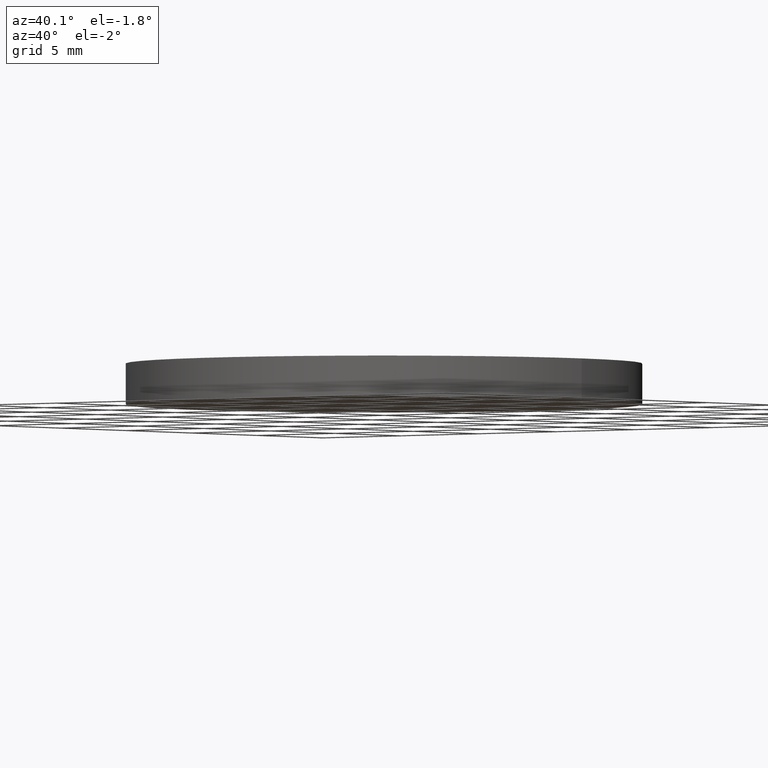
[diagram: clean part render]
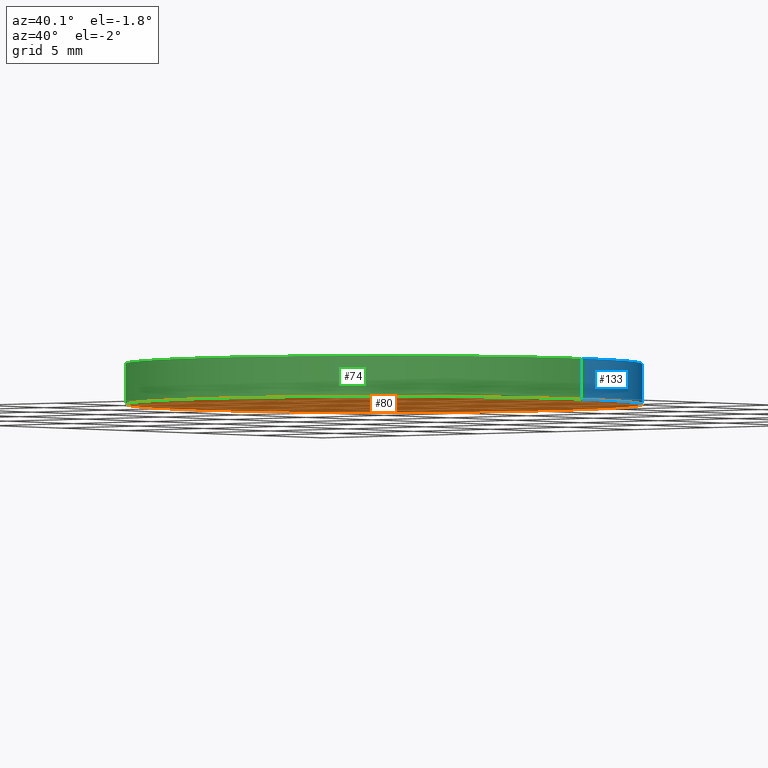
[diagram: same view with three faces highlighted in distinct colors, each labeled with its STEP entity id]
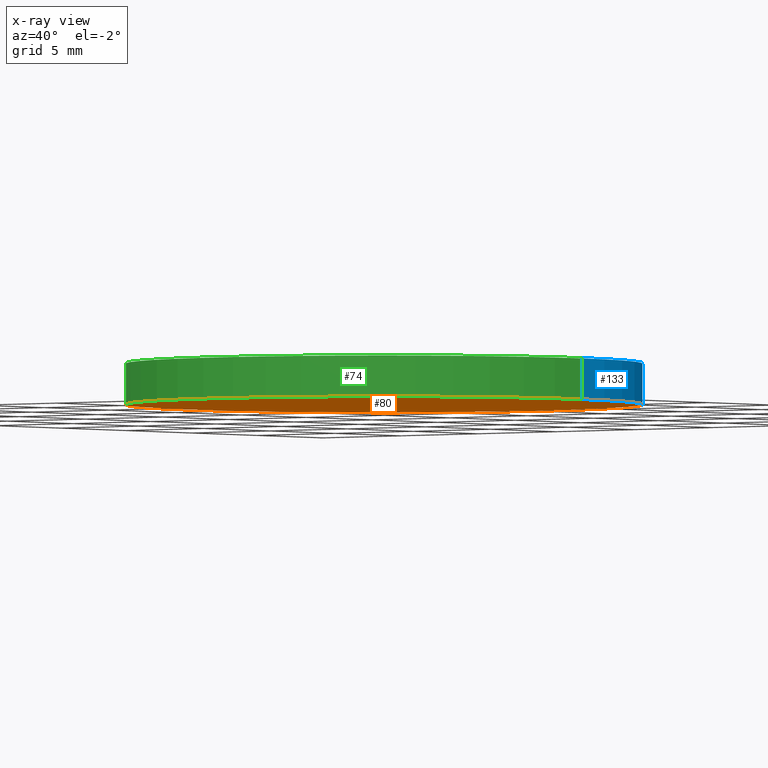
[diagram: x-ray of the same camera — body ghosted, the three highlighted faces saturated]
A machine part, auxiliary view with three faces highlighted in distinct colors.
The next image is the same camera in x-ray (body ghosted, the three faces saturated) — at least one of them is partly hidden behind the body in this view.
Their STEP definitions:

[orange] entity #80 — the highlighted planar face has unit normal (0, 0, 1).
#12 = DIRECTION ( 'NONE',  ( 0.0000000000000000000, 0.0000000000000000000, 1.000000000000000000 ) ) ;
#20 = CIRCLE ( 'NONE', #119, 12.69999999999999900 ) ;
#26 = DIRECTION ( 'NONE',  ( 0.0000000000000000000, 0.0000000000000000000, 1.000000000000000000 ) ) ;
#27 = CARTESIAN_POINT ( 'NONE',  ( 12.69999999999999900, 1.555301434917138400E-015, 0.0000000000000000000 ) ) ;
#29 = ORIENTED_EDGE ( 'NONE', *, *, #122, .F. ) ;
#44 = AXIS2_PLACEMENT_3D ( 'NONE', #92, #12, #79 ) ;
#49 = VERTEX_POINT ( 'NONE', #82 ) ;
#54 = ORIENTED_EDGE ( 'NONE', *, *, #85, .F. ) ;
#59 = DIRECTION ( 'NONE',  ( 0.0000000000000000000, 0.0000000000000000000, 1.000000000000000000 ) ) ;
#63 = AXIS2_PLACEMENT_3D ( 'NONE', #99, #59, #114 ) ;
#69 = EDGE_LOOP ( 'NONE', ( #54, #29 ) ) ;
#79 = DIRECTION ( 'NONE',  ( 1.000000000000000000, 0.0000000000000000000, 0.0000000000000000000 ) ) ;
#80 = ADVANCED_FACE ( 'NONE', ( #132 ), #130, .F. ) ;
#82 = CARTESIAN_POINT ( 'NONE',  ( -12.69999999999999900, 0.0000000000000000000, 0.0000000000000000000 ) ) ;
#85 = EDGE_CURVE ( 'NONE', #49, #111, #125, .T. ) ;
#91 = DIRECTION ( 'NONE',  ( 1.000000000000000000, 0.0000000000000000000, 0.0000000000000000000 ) ) ;
#92 = CARTESIAN_POINT ( 'NONE',  ( 0.0000000000000000000, 0.0000000000000000000, 0.0000000000000000000 ) ) ;
#98 = CARTESIAN_POINT ( 'NONE',  ( 0.0000000000000000000, 0.0000000000000000000, 0.0000000000000000000 ) ) ;
#99 = CARTESIAN_POINT ( 'NONE',  ( 0.0000000000000000000, 0.0000000000000000000, 0.0000000000000000000 ) ) ;
#111 = VERTEX_POINT ( 'NONE', #27 ) ;
#114 = DIRECTION ( 'NONE',  ( 1.000000000000000000, 0.0000000000000000000, -0.0000000000000000000 ) ) ;
#119 = AXIS2_PLACEMENT_3D ( 'NONE', #98, #26, #91 ) ;
#122 = EDGE_CURVE ( 'NONE', #111, #49, #20, .T. ) ;
#125 = CIRCLE ( 'NONE', #44, 12.69999999999999900 ) ;
#130 = PLANE ( 'NONE',  #63 ) ;
#132 = FACE_OUTER_BOUND ( 'NONE', #69, .T. ) ;

[blue] entity #133 — the highlighted cylindrical surface (partial cylindrical patch) has radius 12.7 mm, axis along (-0, -0, -1).
#1 = AXIS2_PLACEMENT_3D ( 'NONE', #60, #115, #48 ) ;
#2 = CARTESIAN_POINT ( 'NONE',  ( -12.69999999999999900, 0.0000000000000000000, 2.000000000000000000 ) ) ;
#3 = CARTESIAN_POINT ( 'NONE',  ( 12.69999999999999900, 1.555301434917138400E-015, 2.000000000000000000 ) ) ;
#8 = ORIENTED_EDGE ( 'NONE', *, *, #122, .T. ) ;
#15 = ORIENTED_EDGE ( 'NONE', *, *, #75, .F. ) ;
#20 = CIRCLE ( 'NONE', #119, 12.69999999999999900 ) ;
#26 = DIRECTION ( 'NONE',  ( 0.0000000000000000000, 0.0000000000000000000, 1.000000000000000000 ) ) ;
#27 = CARTESIAN_POINT ( 'NONE',  ( 12.69999999999999900, 1.555301434917138400E-015, 0.0000000000000000000 ) ) ;
#36 = EDGE_CURVE ( 'NONE', #71, #111, #83, .T. ) ;
#40 = ORIENTED_EDGE ( 'NONE', *, *, #52, .F. ) ;
#45 = FACE_OUTER_BOUND ( 'NONE', #117, .T. ) ;
#48 = DIRECTION ( 'NONE',  ( 1.000000000000000000, 0.0000000000000000000, 0.0000000000000000000 ) ) ;
#49 = VERTEX_POINT ( 'NONE', #82 ) ;
#51 = CARTESIAN_POINT ( 'NONE',  ( 12.69999999999999900, 1.555301434917138400E-015, 2.000000000000000000 ) ) ;
#52 = EDGE_CURVE ( 'NONE', #71, #65, #105, .T. ) ;
#53 = VECTOR ( 'NONE', #86, 1000.000000000000000 ) ;
#60 = CARTESIAN_POINT ( 'NONE',  ( 0.0000000000000000000, 0.0000000000000000000, 2.000000000000000000 ) ) ;
#65 = VERTEX_POINT ( 'NONE', #93 ) ;
#67 = CARTESIAN_POINT ( 'NONE',  ( 0.0000000000000000000, 0.0000000000000000000, 2.000000000000000000 ) ) ;
#68 = DIRECTION ( 'NONE',  ( -0.0000000000000000000, -0.0000000000000000000, -1.000000000000000000 ) ) ;
#70 = CYLINDRICAL_SURFACE ( 'NONE', #129, 12.69999999999999900 ) ;
#71 = VERTEX_POINT ( 'NONE', #3 ) ;
#75 = EDGE_CURVE ( 'NONE', #65, #49, #102, .T. ) ;
#82 = CARTESIAN_POINT ( 'NONE',  ( -12.69999999999999900, 0.0000000000000000000, 0.0000000000000000000 ) ) ;
#83 = LINE ( 'NONE', #51, #53 ) ;
#86 = DIRECTION ( 'NONE',  ( -0.0000000000000000000, -0.0000000000000000000, -1.000000000000000000 ) ) ;
#91 = DIRECTION ( 'NONE',  ( 1.000000000000000000, 0.0000000000000000000, 0.0000000000000000000 ) ) ;
#93 = CARTESIAN_POINT ( 'NONE',  ( -12.69999999999999900, 0.0000000000000000000, 2.000000000000000000 ) ) ;
#98 = CARTESIAN_POINT ( 'NONE',  ( 0.0000000000000000000, 0.0000000000000000000, 0.0000000000000000000 ) ) ;
#102 = LINE ( 'NONE', #2, #135 ) ;
#105 = CIRCLE ( 'NONE', #1, 12.69999999999999900 ) ;
#111 = VERTEX_POINT ( 'NONE', #27 ) ;
#115 = DIRECTION ( 'NONE',  ( 0.0000000000000000000, 0.0000000000000000000, 1.000000000000000000 ) ) ;
#117 = EDGE_LOOP ( 'NONE', ( #40, #120, #8, #15 ) ) ;
#119 = AXIS2_PLACEMENT_3D ( 'NONE', #98, #26, #91 ) ;
#120 = ORIENTED_EDGE ( 'NONE', *, *, #36, .T. ) ;
#122 = EDGE_CURVE ( 'NONE', #111, #49, #20, .T. ) ;
#127 = DIRECTION ( 'NONE',  ( -0.0000000000000000000, -0.0000000000000000000, -1.000000000000000000 ) ) ;
#129 = AXIS2_PLACEMENT_3D ( 'NONE', #67, #127, #139 ) ;
#133 = ADVANCED_FACE ( 'NONE', ( #45 ), #70, .T. ) ;
#135 = VECTOR ( 'NONE', #68, 1000.000000000000000 ) ;
#139 = DIRECTION ( 'NONE',  ( -1.000000000000000000, 0.0000000000000000000, 0.0000000000000000000 ) ) ;

[green] entity #74 — the highlighted cylindrical surface (partial cylindrical patch) has radius 12.7 mm, axis along (-0, -0, -1).
#2 = CARTESIAN_POINT ( 'NONE',  ( -12.69999999999999900, 0.0000000000000000000, 2.000000000000000000 ) ) ;
#3 = CARTESIAN_POINT ( 'NONE',  ( 12.69999999999999900, 1.555301434917138400E-015, 2.000000000000000000 ) ) ;
#4 = ORIENTED_EDGE ( 'NONE', *, *, #36, .F. ) ;
#6 = CARTESIAN_POINT ( 'NONE',  ( 0.0000000000000000000, 0.0000000000000000000, 2.000000000000000000 ) ) ;
#12 = DIRECTION ( 'NONE',  ( 0.0000000000000000000, 0.0000000000000000000, 1.000000000000000000 ) ) ;
#19 = ORIENTED_EDGE ( 'NONE', *, *, #85, .T. ) ;
#22 = FACE_OUTER_BOUND ( 'NONE', #64, .T. ) ;
#27 = CARTESIAN_POINT ( 'NONE',  ( 12.69999999999999900, 1.555301434917138400E-015, 0.0000000000000000000 ) ) ;
#36 = EDGE_CURVE ( 'NONE', #71, #111, #83, .T. ) ;
#38 = DIRECTION ( 'NONE',  ( -1.000000000000000000, 0.0000000000000000000, 0.0000000000000000000 ) ) ;
#44 = AXIS2_PLACEMENT_3D ( 'NONE', #92, #12, #79 ) ;
#49 = VERTEX_POINT ( 'NONE', #82 ) ;
#50 = CYLINDRICAL_SURFACE ( 'NONE', #140, 12.69999999999999900 ) ;
#51 = CARTESIAN_POINT ( 'NONE',  ( 12.69999999999999900, 1.555301434917138400E-015, 2.000000000000000000 ) ) ;
#53 = VECTOR ( 'NONE', #86, 1000.000000000000000 ) ;
#58 = DIRECTION ( 'NONE',  ( 0.0000000000000000000, 0.0000000000000000000, 1.000000000000000000 ) ) ;
#64 = EDGE_LOOP ( 'NONE', ( #4, #124, #101, #19 ) ) ;
#65 = VERTEX_POINT ( 'NONE', #93 ) ;
#68 = DIRECTION ( 'NONE',  ( -0.0000000000000000000, -0.0000000000000000000, -1.000000000000000000 ) ) ;
#71 = VERTEX_POINT ( 'NONE', #3 ) ;
#73 = AXIS2_PLACEMENT_3D ( 'NONE', #128, #58, #113 ) ;
#74 = ADVANCED_FACE ( 'NONE', ( #22 ), #50, .T. ) ;
#75 = EDGE_CURVE ( 'NONE', #65, #49, #102, .T. ) ;
#79 = DIRECTION ( 'NONE',  ( 1.000000000000000000, 0.0000000000000000000, 0.0000000000000000000 ) ) ;
#82 = CARTESIAN_POINT ( 'NONE',  ( -12.69999999999999900, 0.0000000000000000000, 0.0000000000000000000 ) ) ;
#83 = LINE ( 'NONE', #51, #53 ) ;
#85 = EDGE_CURVE ( 'NONE', #49, #111, #125, .T. ) ;
#86 = DIRECTION ( 'NONE',  ( -0.0000000000000000000, -0.0000000000000000000, -1.000000000000000000 ) ) ;
#88 = EDGE_CURVE ( 'NONE', #65, #71, #100, .T. ) ;
#92 = CARTESIAN_POINT ( 'NONE',  ( 0.0000000000000000000, 0.0000000000000000000, 0.0000000000000000000 ) ) ;
#93 = CARTESIAN_POINT ( 'NONE',  ( -12.69999999999999900, 0.0000000000000000000, 2.000000000000000000 ) ) ;
#100 = CIRCLE ( 'NONE', #73, 12.69999999999999900 ) ;
#101 = ORIENTED_EDGE ( 'NONE', *, *, #75, .T. ) ;
#102 = LINE ( 'NONE', #2, #135 ) ;
#111 = VERTEX_POINT ( 'NONE', #27 ) ;
#113 = DIRECTION ( 'NONE',  ( 1.000000000000000000, 0.0000000000000000000, 0.0000000000000000000 ) ) ;
#124 = ORIENTED_EDGE ( 'NONE', *, *, #88, .F. ) ;
#125 = CIRCLE ( 'NONE', #44, 12.69999999999999900 ) ;
#128 = CARTESIAN_POINT ( 'NONE',  ( 0.0000000000000000000, 0.0000000000000000000, 2.000000000000000000 ) ) ;
#131 = DIRECTION ( 'NONE',  ( -0.0000000000000000000, -0.0000000000000000000, -1.000000000000000000 ) ) ;
#135 = VECTOR ( 'NONE', #68, 1000.000000000000000 ) ;
#140 = AXIS2_PLACEMENT_3D ( 'NONE', #6, #131, #38 ) ;